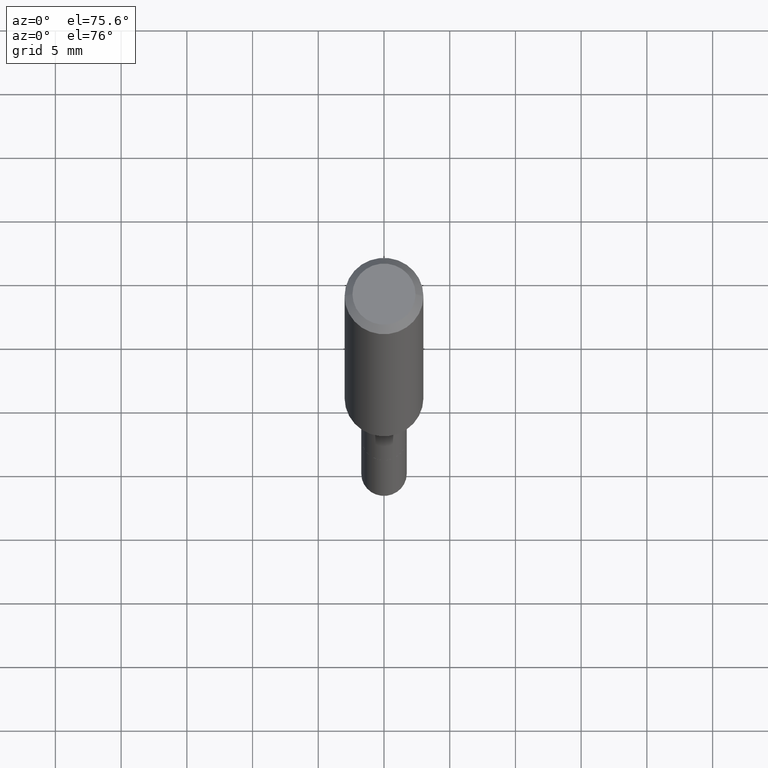
[diagram: clean part render]
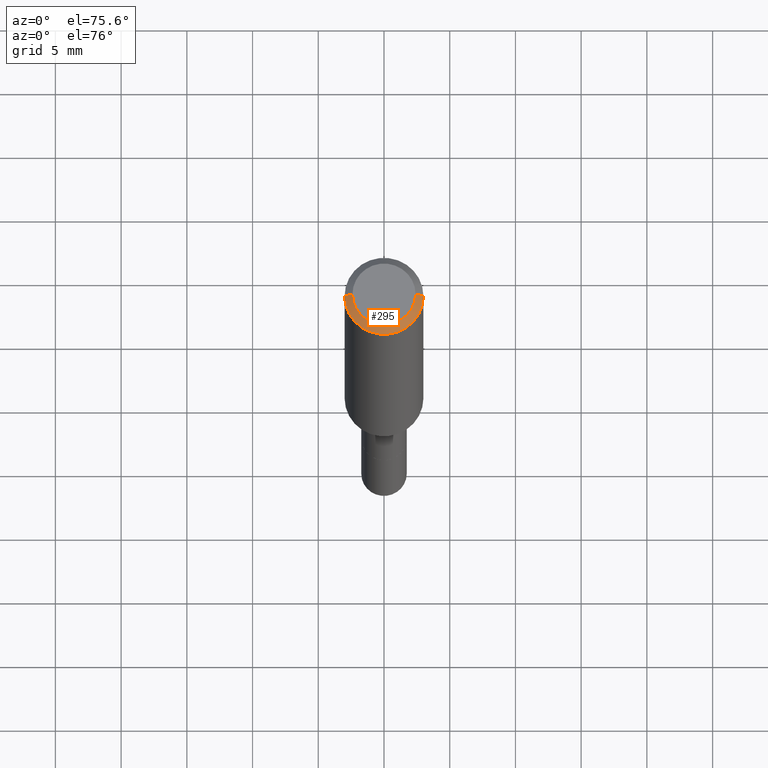
[diagram: same view with one face highlighted and labeled with its STEP entity id]
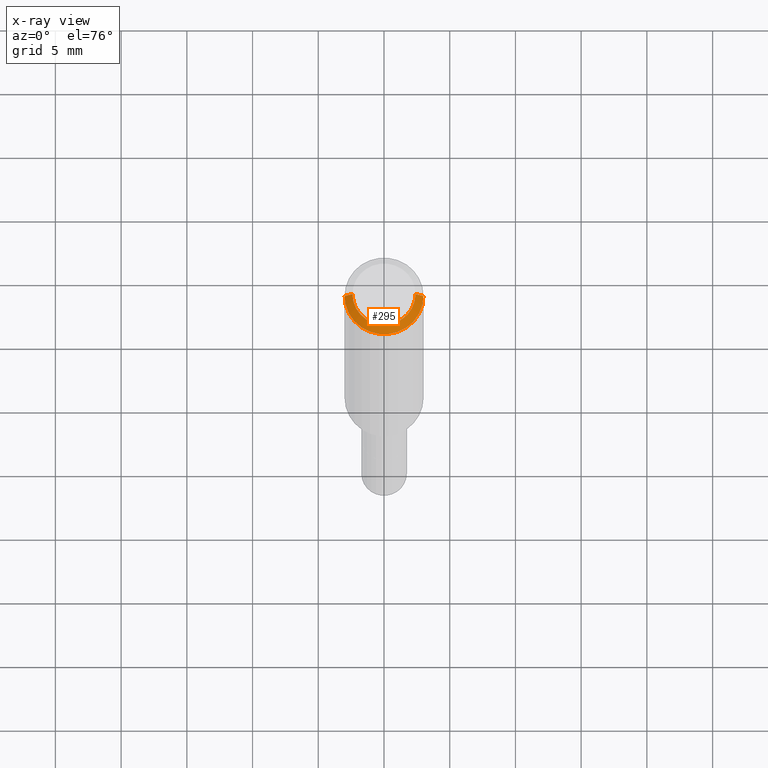
[diagram: x-ray of the same camera — body ghosted, the highlighted face saturated]
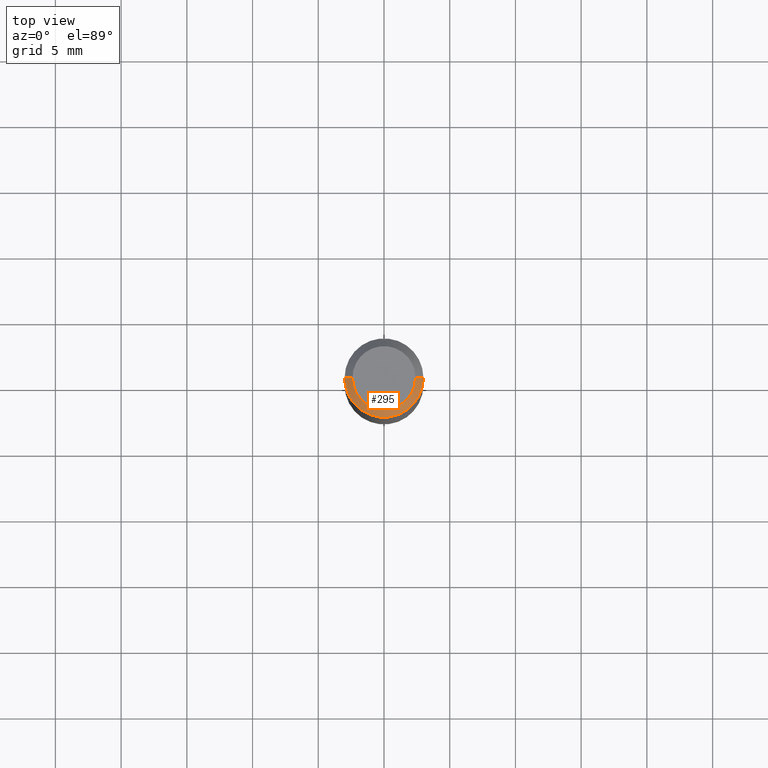
[diagram: same view with one face highlighted and labeled with its STEP entity id]
A machine part, auxiliary view. The second image highlights one B-rep face of the part: STEP entity #295.
The next image is the same camera in x-ray: the body ghosted, the highlighted face saturated — about 0% of this face is hidden behind the body in this view.
A second angle (top view) of the same face is appended — the face is thin or edge-on in the first view.
In plain terms, the highlighted conical surface has half-angle 45 deg.
Its self-contained STEP definition (entity closure, byte-faithful):
#12 = EDGE_CURVE ( 'NONE', #436, #21, #127, .T. ) ;
#18 = CARTESIAN_POINT ( 'NONE',  ( 0.1180999999999999966, -9.071566814582237199E-16, -0.02362000000000014435 ) ) ;
#21 = VERTEX_POINT ( 'NONE', #48 ) ;
#25 = ORIENTED_EDGE ( 'NONE', *, *, #12, .T. ) ;
#30 = CONICAL_SURFACE ( 'NONE', #307, 0.1180999999999999966, 0.7853981633974461696 ) ;
#35 = EDGE_LOOP ( 'NONE', ( #433, #112, #25, #115 ) ) ;
#48 = CARTESIAN_POINT ( 'NONE',  ( -0.1180999999999999966, -1.389778401389283023E-15, -0.02362000000000014435 ) ) ;
#67 = DIRECTION ( 'NONE',  ( -2.445468806185136597E-29, 3.491481338843145583E-15, 1.000000000000000000 ) ) ;
#76 = VERTEX_POINT ( 'NONE', #456 ) ;
#99 = VERTEX_POINT ( 'NONE', #18 ) ;
#100 = CARTESIAN_POINT ( 'NONE',  ( 0.1180999999999999966, -8.926936027602933910E-16, -0.02362000000000014435 ) ) ;
#112 = ORIENTED_EDGE ( 'NONE', *, *, #195, .F. ) ;
#115 = ORIENTED_EDGE ( 'NONE', *, *, #502, .T. ) ;
#119 = FACE_OUTER_BOUND ( 'NONE', #35, .T. ) ;
#127 = LINE ( 'NONE', #210, #419 ) ;
#135 = CIRCLE ( 'NONE', #381, 0.1180999999999999966 ) ;
#150 = EDGE_CURVE ( 'NONE', #76, #99, #304, .T. ) ;
#161 = CARTESIAN_POINT ( 'NONE',  ( -0.09447999999999998066, 7.009847083995354710E-16, -3.085620075132147757E-17 ) ) ;
#195 = EDGE_CURVE ( 'NONE', #436, #76, #434, .T. ) ;
#210 = CARTESIAN_POINT ( 'NONE',  ( -0.1180999999999999966, 7.422191030112725094E-16, -0.02362000000000014435 ) ) ;
#229 = DIRECTION ( 'NONE',  ( 1.000000000000000000, -6.982962677686267499E-15, 4.875432709231658792E-29 ) ) ;
#256 = VECTOR ( 'NONE', #264, 39.37007874015748143 ) ;
#264 = DIRECTION ( 'NONE',  ( 0.7071067811865460184, -7.319954787623251312E-15, -0.7071067811865490160 ) ) ;
#279 = CARTESIAN_POINT ( 'NONE',  ( 5.776197320209328408E-31, -8.246878922347560526E-17, -0.02362000000000014435 ) ) ;
#295 = ADVANCED_FACE ( 'NONE', ( #119 ), #30, .T. ) ;
#304 = LINE ( 'NONE', #100, #256 ) ;
#307 = AXIS2_PLACEMENT_3D ( 'NONE', #279, #409, #437 ) ;
#318 = CARTESIAN_POINT ( 'NONE',  ( 5.776197320209328408E-31, -8.246878922347560526E-17, -0.02362000000000014435 ) ) ;
#329 = AXIS2_PLACEMENT_3D ( 'NONE', #431, #67, #229 ) ;
#380 = DIRECTION ( 'NONE',  ( -2.445468806185136597E-29, 3.491481338843145583E-15, 1.000000000000000000 ) ) ;
#381 = AXIS2_PLACEMENT_3D ( 'NONE', #318, #380, #439 ) ;
#409 = DIRECTION ( 'NONE',  ( 2.445468806185136597E-29, -3.491481338843145583E-15, -1.000000000000000000 ) ) ;
#419 = VECTOR ( 'NONE', #448, 39.37007874015748143 ) ;
#431 = CARTESIAN_POINT ( 'NONE',  ( 7.545787641473140628E-46, -1.077338491108201769E-31, -3.085620075131671975E-17 ) ) ;
#433 = ORIENTED_EDGE ( 'NONE', *, *, #150, .F. ) ;
#434 = CIRCLE ( 'NONE', #329, 0.09447999999999998066 ) ;
#436 = VERTEX_POINT ( 'NONE', #161 ) ;
#437 = DIRECTION ( 'NONE',  ( -1.000000000000000000, 6.982962677686266711E-15, 0.000000000000000000 ) ) ;
#439 = DIRECTION ( 'NONE',  ( 1.000000000000000000, -6.982962677686266711E-15, 0.000000000000000000 ) ) ;
#448 = DIRECTION ( 'NONE',  ( -0.7071067811865460184, 2.468850131082241283E-15, -0.7071067811865490160 ) ) ;
#456 = CARTESIAN_POINT ( 'NONE',  ( 0.09447999999999998066, -7.704367267948738690E-16, -3.085620075131172158E-17 ) ) ;
#502 = EDGE_CURVE ( 'NONE', #21, #99, #135, .T. ) ;